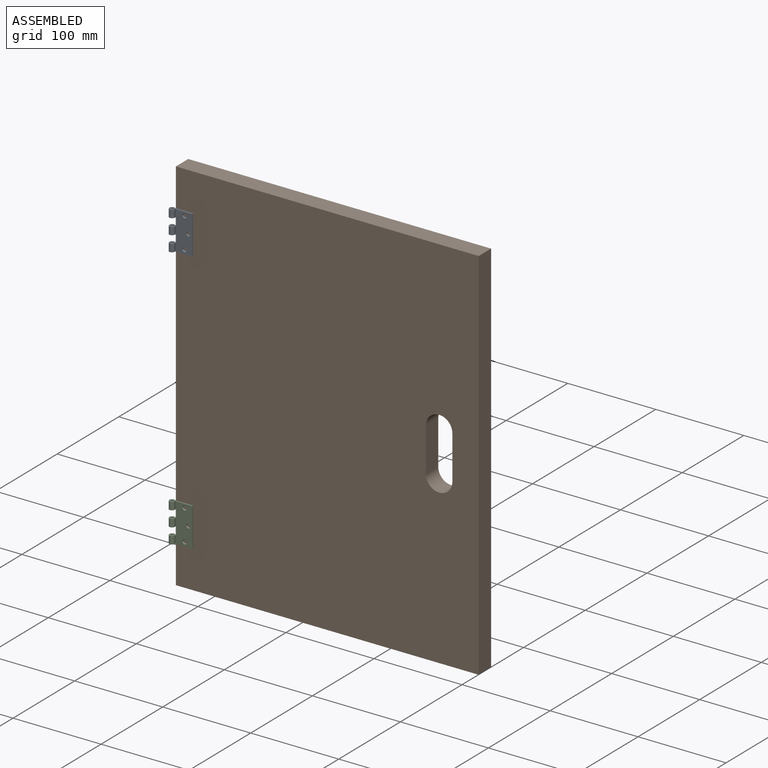
[diagram: assembled view]
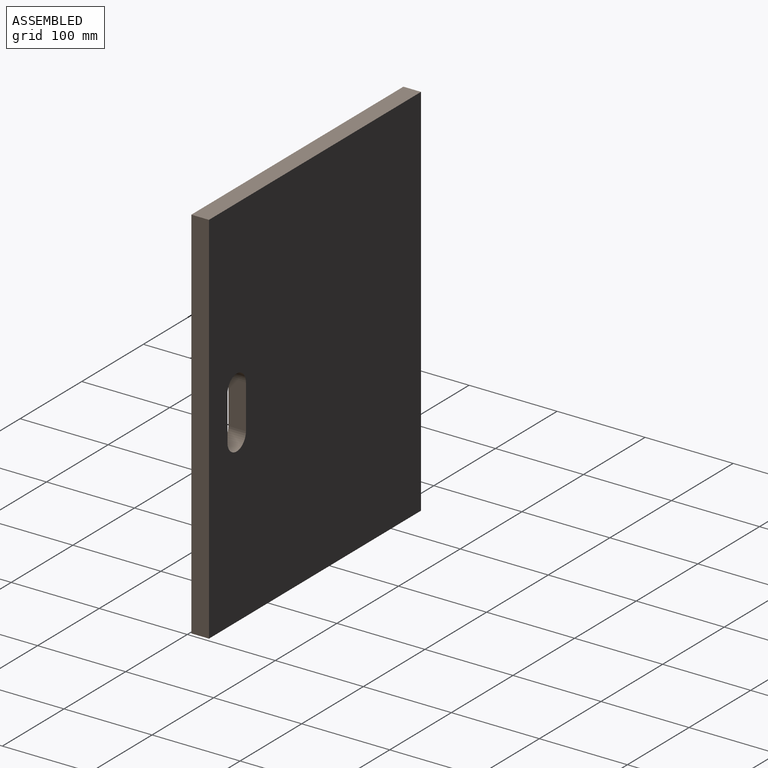
[diagram: assembled view, second angle]
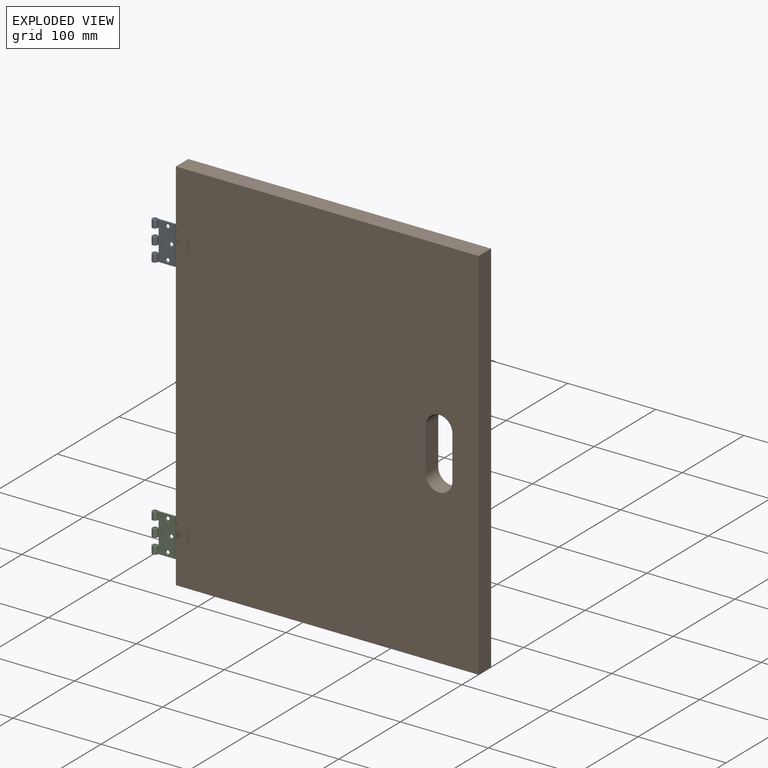
[diagram: exploded view]
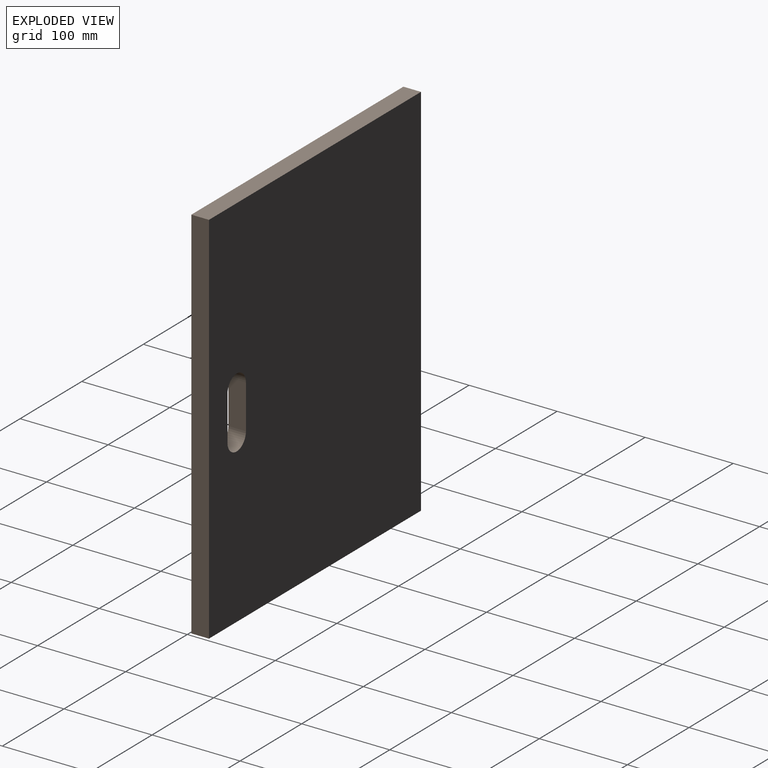
[diagram: exploded view, second angle]
ASSEMBLY  parts=3 mates=4
PART A: 29 faces, bbox 25.5x43.8x6.2 mm
  f0: plane 8.76x2.64mm, normal (0.34,0,-0.94), area 24.5mm2, adj f2,f10,f23,f27
  f1: plane 8.76x2.64mm, normal (0.34,0,-0.94), area 24.5mm2, adj f3,f10,f18,f24
  f2: cylinder r=3.08mm len=8.76mm, axis (0,1,0), area 142.8mm2, adj f0,f4,f23,f27
  f3: cylinder r=3.08mm len=8.76mm, axis (0,1,0), area 142.8mm2, adj f1,f5,f18,f24
  f4: plane 8.76x1.26mm, normal (0,0,-1), area 11.1mm2, adj f2,f6,f23,f27
  f5: plane 8.76x1.26mm, normal (0,0,-1), area 11.1mm2, adj f3,f7,f18,f24
  f6: cylinder r=1.88mm len=8.76mm, axis (0,1,0), area 89.5mm2, adj f4,f8,f23,f27
  f7: cylinder r=1.88mm len=8.76mm, axis (0,1,0), area 89.5mm2, adj f5,f9,f18,f24
  f8: plane 8.76x3.08mm, normal (-0.32,0,0.95), area 28.5mm2, adj f6,f16,f23,f27
  f9: plane 8.76x3.08mm, normal (-0.32,0,0.95), area 28.5mm2, adj f7,f16,f18,f24
  f10: plane 43.8x18.75mm, normal (0,0,-1), area 790.7mm2, adj f0,f1,f11,f17,f18,f19,f20,f21
  f11: plane 8.76x2.64mm, normal (0.34,0,-0.94), area 24.5mm2, adj f10,f12,f19,f26
  f12: cylinder r=3.08mm len=8.76mm, axis (0,1,0), area 142.8mm2, adj f11,f13,f19,f26
  f13: plane 8.76x1.26mm, normal (0,0,-1), area 11.1mm2, adj f12,f14,f19,f26
  f14: cylinder r=1.88mm len=8.76mm, axis (0,1,0), area 89.5mm2, adj f13,f15,f19,f26
  f15: plane 8.76x3.08mm, normal (-0.32,0,0.95), area 28.5mm2, adj f14,f16,f19,f26
  f16: plane 43.8x18.75mm, normal (0,0,1), area 769.2mm2, adj f8,f9,f15,f17,f18,f19,f20,f21
  f17: plane 43.8x1.2mm, normal (1,0,0), area 52.6mm2, adj f10,f16,f18,f19
  f18: plane 25.5x6.15mm, normal (0,-1,0), area 41.9mm2, adj f1,f3,f5,f7,f9,f10,f16,f17
  f19: plane 25.5x6.15mm, normal (0,1,0), area 41.9mm2, adj f10,f11,f12,f13,f14,f15,f16,f17
  f20: cone r=2.4mm half-angle=26.6deg, axis (0,0,1), area 17.7mm2, adj f10,f16
  f21: cone r=2.25mm half-angle=20.6deg, axis (0,0,1), area 16.3mm2, adj f10,f16
  f22: cone r=2.4mm half-angle=26.6deg, axis (0,0,1), area 17.7mm2, adj f10,f16
  f23: plane 6.75x6.15mm, normal (0,-1,0), area 19.4mm2, adj f0,f2,f4,f6,f8,f25
  f24: plane 6.75x6.15mm, normal (0,1,0), area 19.4mm2, adj f1,f3,f5,f7,f9,f25
  f25: plane 8.76x1.2mm, normal (-1,0,0), area 10.5mm2, adj f10,f16,f23,f24
  f26: plane 6.75x6.15mm, normal (0,-1,0), area 19.4mm2, adj f11,f12,f13,f14,f15,f28
  f27: plane 6.75x6.15mm, normal (0,1,0), area 19.4mm2, adj f0,f2,f4,f6,f8,f28
  f28: plane 8.76x1.2mm, normal (-1,0,0), area 10.5mm2, adj f10,f16,f26,f27
PART B: 18 faces, bbox 344.1x20x430 mm
  f0: plane 430x344.06mm, normal (0,-1,0), area 143890.9mm2, adj f1,f2,f3,f4,f5,f6,f7,f8
  f1: plane 430x20mm, normal (1,0,0), area 8600mm2, adj f0,f2,f8,f9
  f2: plane 344.06x20mm, normal (0,0,1), area 6881.2mm2, adj f0,f1,f3,f9
  f3: plane 430x20.01mm, normal (-1,0,0), area 8600.9mm2, adj f0,f2,f8,f9,f10,f11,f13,f14
  f4: plane 50x20mm, normal (-1,0,0), area 1000mm2, adj f0,f5,f7,f9
  f5: cylinder r=15mm len=30mm, axis (0,1,0), area 942.5mm2, adj f0,f4,f6,f9
  f6: plane 50x20mm, normal (1,0,0), area 1000mm2, adj f0,f5,f7,f9
  f7: cylinder r=15mm len=30mm, axis (0,1,0), area 942.5mm2, adj f0,f4,f6,f9
  f8: plane 344.06x20mm, normal (0,0,-1), area 6881.2mm2, adj f0,f1,f3,f9
  f9: plane 430x344.06mm, normal (0,1,0), area 145738.9mm2, adj f1,f2,f3,f4,f5,f6,f7,f8
  f10: plane 20x0.01mm, normal (0,0,1), area 0.2mm2, adj f0,f3,f12,f13
  f11: plane 20x0.01mm, normal (0,0,-1), area 0.2mm2, adj f0,f3,f12,f13
  f12: plane 46.2x0.01mm, normal (1,0,0), area 0.5mm2, adj f0,f10,f11,f13
  f13: plane 46.2x20mm, normal (0,-1,0), area 924mm2, adj f3,f10,f11,f12
  f14: plane 20x0.01mm, normal (0,0,-1), area 0.2mm2, adj f0,f3,f15,f17
  f15: plane 46.2x0.01mm, normal (1,0,0), area 0.5mm2, adj f0,f14,f16,f17
  f16: plane 20x0.01mm, normal (0,0,1), area 0.2mm2, adj f0,f3,f15,f17
  f17: plane 46.2x20mm, normal (0,-1,0), area 924mm2, adj f3,f14,f15,f16
PART C: same geometry as A
PLACE A rot(axis=(1,0,0),90deg) t=(-33.88,104.08,426.41)mm
PLACE B t=(-133.48,132.09,-62.69)mm
PLACE C rot(axis=(1,0,0),90deg) t=(-33.88,104.08,126.41)mm
MATE fastened A.f10 <-> B.f13  axis (0,1,0) through (-123.48,112.08,302.31)mm
MATE fastened C.f10 <-> B.f17  axis (0,1,0) through (-123.48,112.08,2.31)mm
MATE planar A.f21 <-> B.f13  axis (0,1,0) through (-118.53,112.08,302.31)mm
MATE planar C.f10 <-> B.f17  axis (0,1,0) through (-123.48,112.08,2.31)mm
